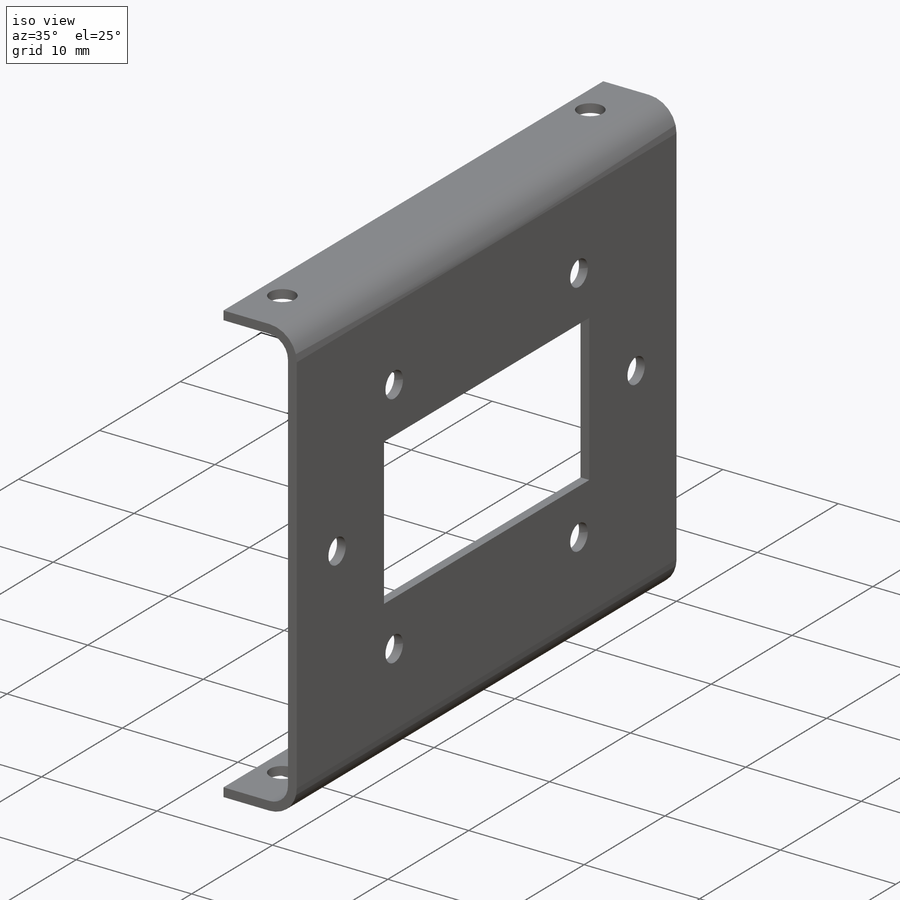
[diagram: iso view]
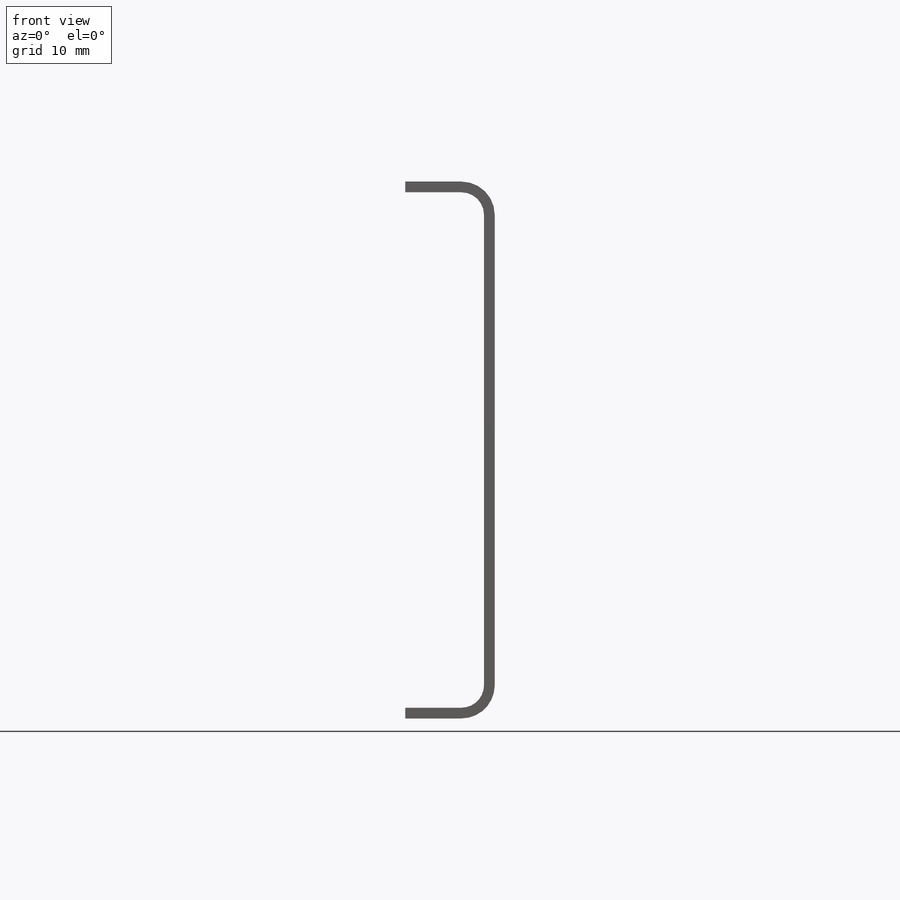
[diagram: front view]
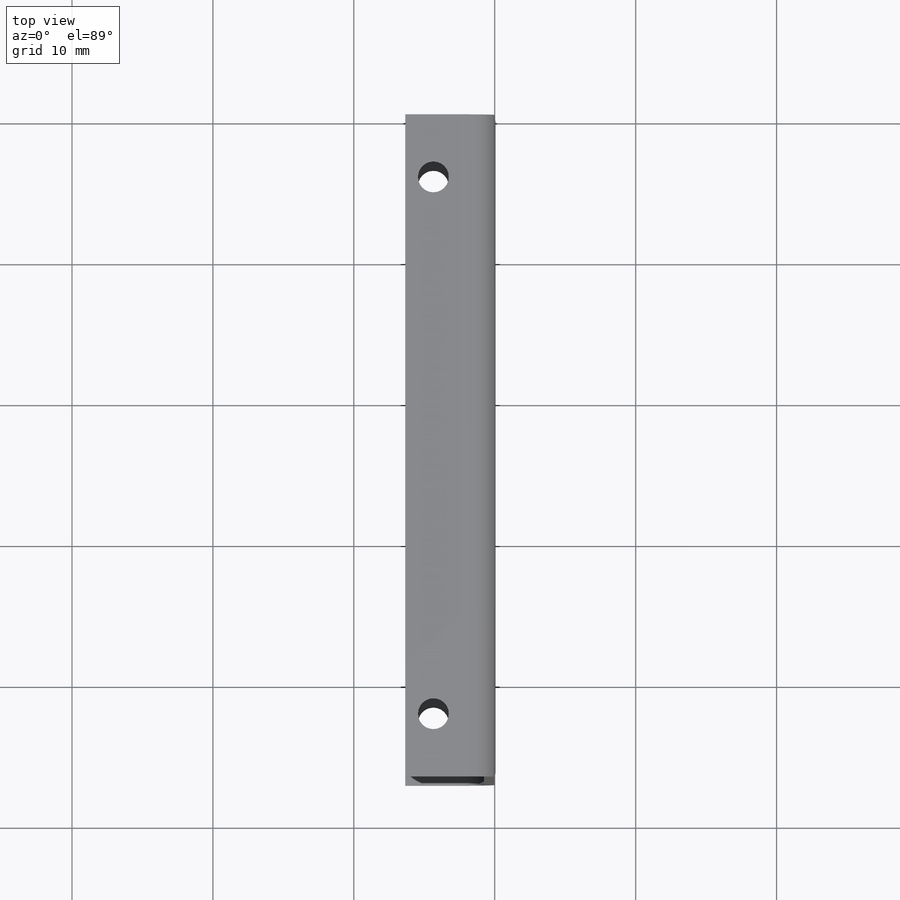
[diagram: top view]
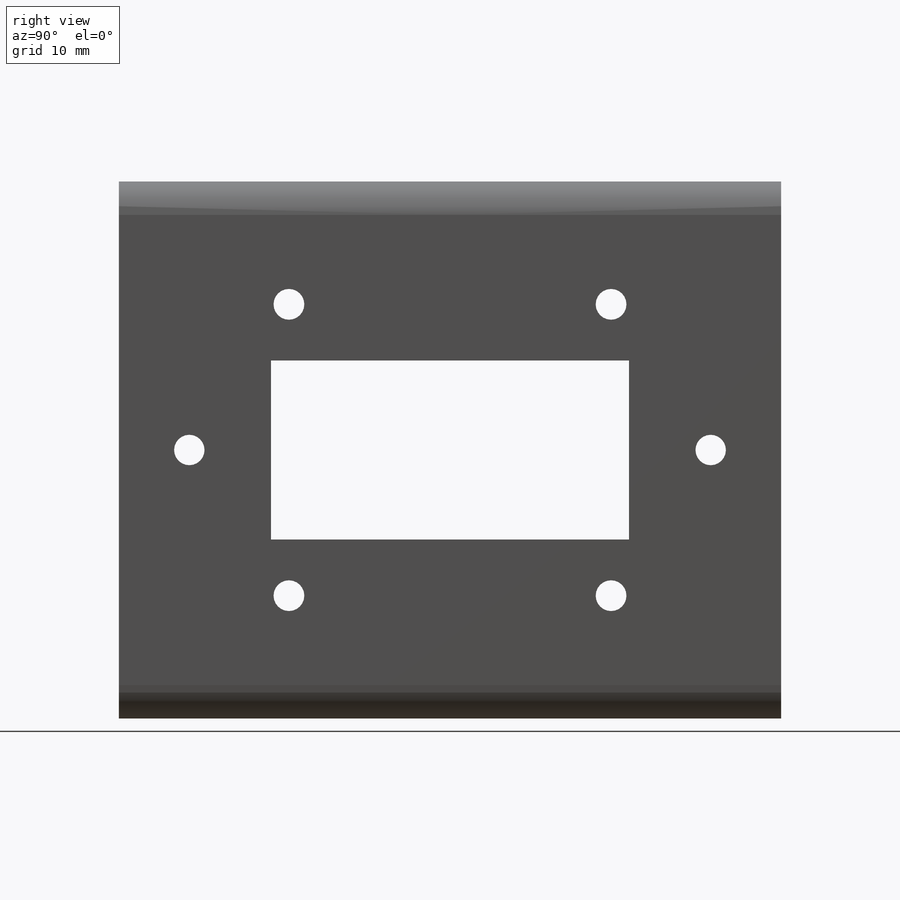
[diagram: right view]
SOLIDWORKS PART (.sldprt)
format: sldprt  version: not decoded by parser v0  size: 499,712 bytes
history: native  units: mm
features: sketch x7, sheet_metal_op x3, cut_extrude x3, mirror x2, material x1, hole x1 + 1 further entry (+15 scaffold rows collapsed; 1 parser-record rows omitted)
feature tree (34):
  scaffold x15  (default folders/planes/origin — collapsed)
  material  "6061 Alloy"
  sketch  "Sketch1"  dims[c1.D1=~56.242161mm c2.D1=38.1mm c2.D2=6.35mm]
  sheet_metal_op  "Sheet-Metal1"  Thickness=0.762mm
  sheet_metal_op  "Base-Flange1"
  sheet_metal_op  "BaseBend2"
  sketch  "Sketch2"  dims[c1.D1=~2.402189mm c1.D2=~2.402189mm c1.D3=2.159mm c2.D1=37.0mm c2.D2=19.05mm]
  cut_extrude  "Extrude1"  [1 undecoded]
  hole  "#2-56 Tapped Hole1"  Diameter=1.778mm Depth=5.588mm
  sketch  "3DSketch1"  dims[c1.D1=~2.601721mm c1.D2=3.175mm c2.D1=40.64mm c2.D2=33.02mm c3.D1=33.02mm c3.D2=33.02mm c4.D1=38.1mm c4.D2=12.065mm c4.D3=12.065mm c4.D4=6.35mm]
  sketch  "Sketch3"  dims[hole-wizard template sketch: 34 standard entries collapsed; hole parameters above]
  mirror  "Mirror1"
  sketch  "Sketch4"  dims[D1=0.762mm D2=12.7mm D3=5.08mm]
  cut_extrude  "Extrude2"  [1 undecoded]
  sketch  "Sketch5"  dims[D1=25.4mm D2=12.7mm]
  cut_extrude  "Extrude3"  [1 undecoded]
  "Flat-Pattern1"
  sketch  "Bend-Lines1"
  mirror  "Flatten-<BaseBend2>1"
  parser-record x1  (decoder bookkeeping rows leaked as tree rows — omitted from the tree; the rows remain in map.json)
decode coverage: 8 of 16 modeling features carry decoded parameters; 1 rows unclassified (native names shown)
note: ~ marks probable driven/reference dimensions
note: 3 parameter values undecoded
summary: no parameter record found for 3 features
note: suppression state not decoded; provenance and decode notes live in map.json
